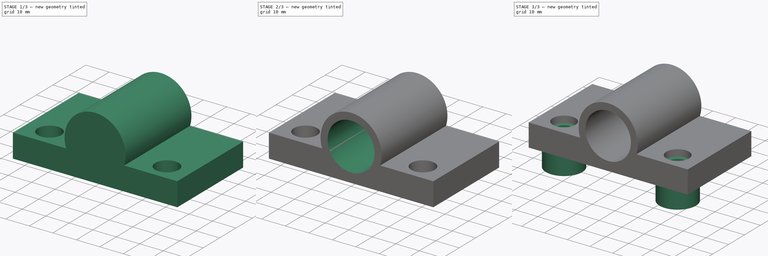
[diagram: build sequence overview — one tinted view per stage of 3, left to right]
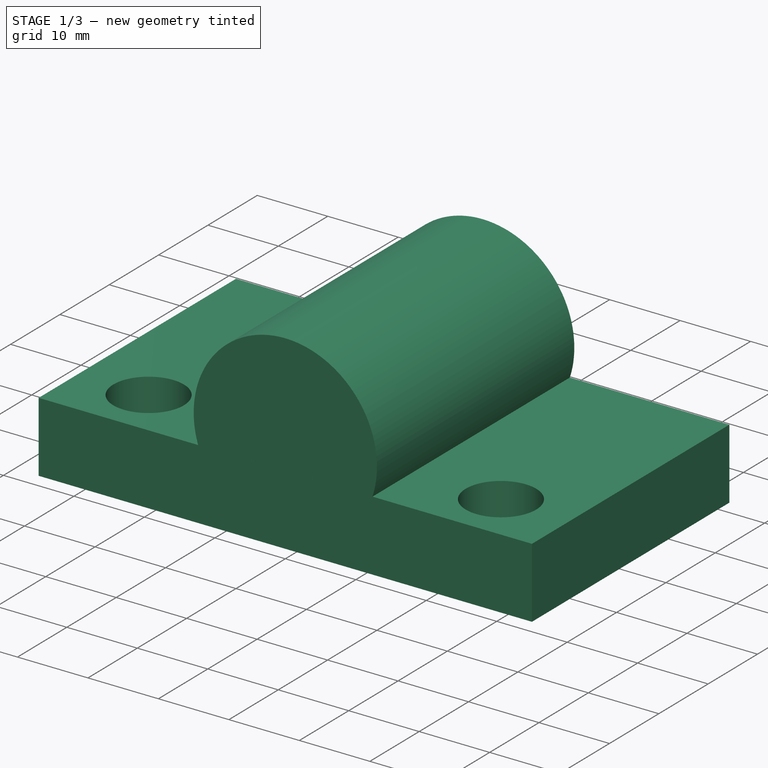
[diagram: stage 1 of 3 — iso view after this stage's code; geometry added in this stage tinted green]
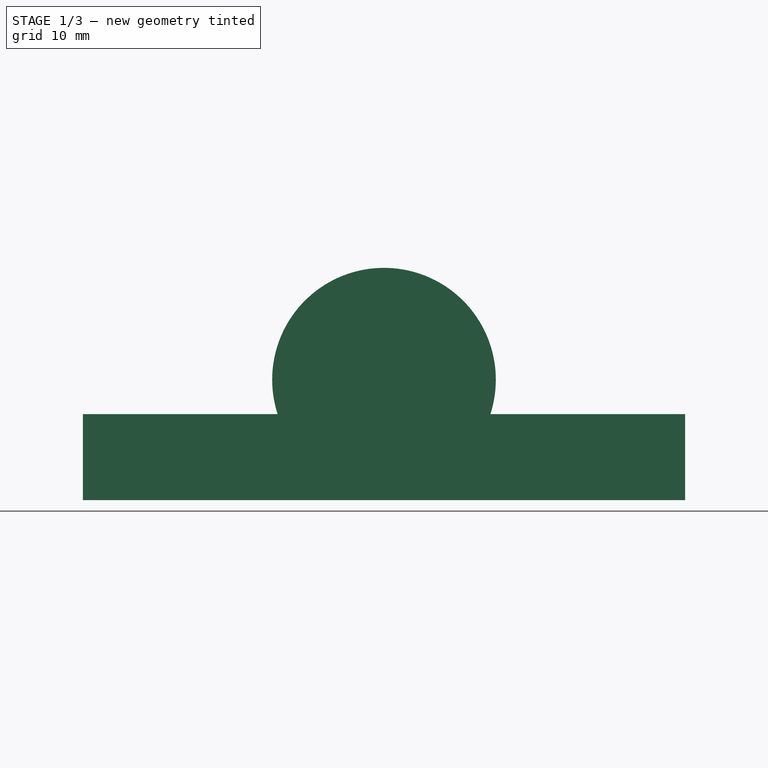
[diagram: stage 1 of 3 — front view after this stage's code; geometry added in this stage tinted green]
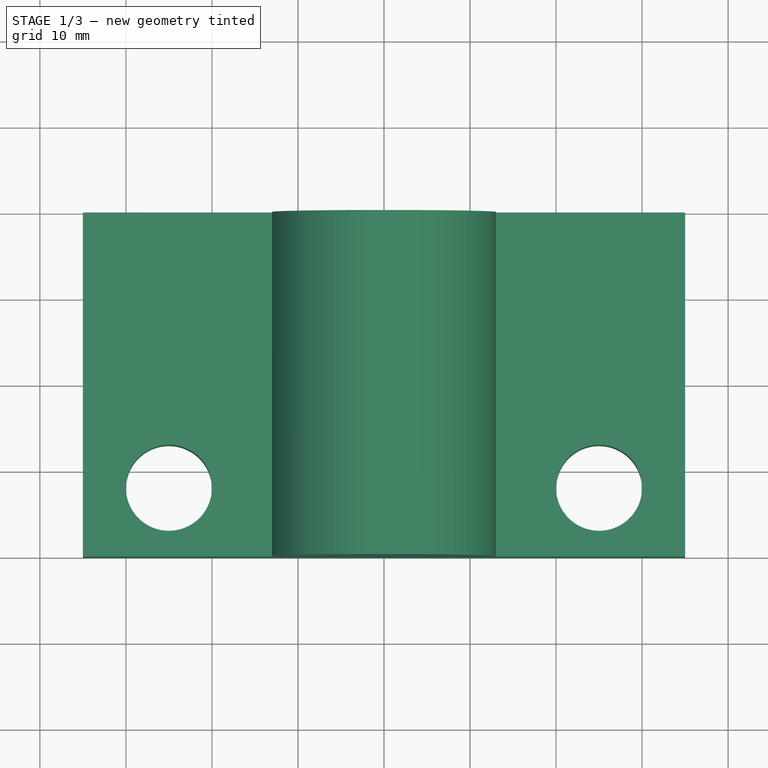
[diagram: stage 1 of 3 — top view after this stage's code; geometry added in this stage tinted green]
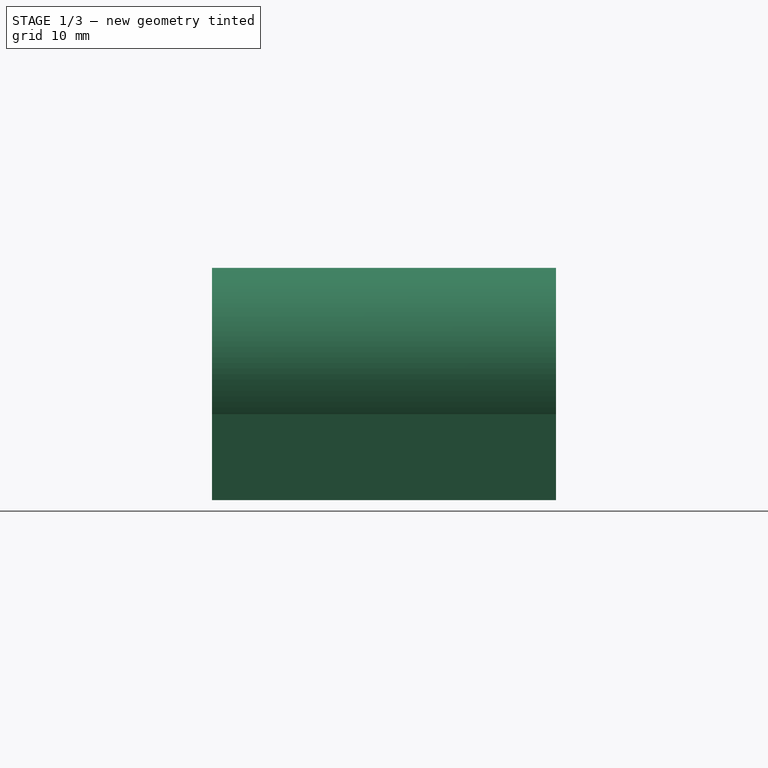
[diagram: stage 1 of 3 — right view after this stage's code; geometry added in this stage tinted green]
FCSTD DOCUMENT  (FreeCAD 0.16R6698 (Git))
Label: table-bracket-top
License: All rights reserved
LicenseURL: http://en.wikipedia.org/wiki/All_rights_reserved
objects: Sketcher::SketchObject×4, Part::Extrusion×4, Part::Cut×1, Part::MultiFuse×1
note: 10 computed .brp shape members not serialized (recipe doc carries the construction recipe); baked Part::Feature solids carry a one-line shape summary decoded from their .brp

FEATURE [Sketcher::SketchObject] Sketch
  sketch-geometry (7):
    g0: LineSegment StartX=-35 StartY=20 StartZ=0 EndX=35 EndY=20 EndZ=0
    g1: LineSegment StartX=35 StartY=20 StartZ=0 EndX=35 EndY=-20 EndZ=0
    g2: LineSegment StartX=35 StartY=-20 StartZ=0 EndX=-35 EndY=-20 EndZ=0
    g3: LineSegment StartX=-35 StartY=-20 StartZ=0 EndX=-35 EndY=20 EndZ=0
    g4: Circle CenterX=-25 CenterY=-12 CenterZ=0 NormalX=0 NormalY=0 NormalZ=1 Radius=5
    g5: Circle CenterX=25 CenterY=-12 CenterZ=0 NormalX=0 NormalY=0 NormalZ=1 Radius=5
    g6: LineSegment [constr] StartX=-25 StartY=-12 StartZ=0 EndX=25 EndY=-12 EndZ=0
  constraints (20):
    c: Coincident(g0,g1)
    c: Coincident(g1,g2)
    c: Coincident(g2,g3)
    c: Coincident(g3,g0)
    c: Horizontal(g0)
    c: Horizontal(g2)
    c: Vertical(g1)
    c: Vertical(g3)
    c: DistanceX(g0,g0) = 70
    c: DistanceY(g1,g1) = 40
    c: Symmetric(g0,g0,g-2)
    c: Symmetric(g0,g1,g-1)
    c: Coincident(g6,g4)
    c: Coincident(g6,g5)
    c: Horizontal(g6)
    c: Radius(g4) = 5
    c: Equal(g4,g5)
    c: DistanceX(g6,g6) = 50
    c: Symmetric(g4,g5,g-2)
    c: DistanceY(g5,g-1) = 12
FEATURE [Part::Extrusion] Extrude
  Base = -> Sketch
  Dir = (0,0,10)
  Solid = true
FEATURE [Sketcher::SketchObject] Sketch003
  Placement = pos=(0,0,0) rot=(1,0,0;1.5708rad)
  sketch-geometry (1):
    g0: Circle CenterX=0 CenterY=0 CenterZ=0 NormalX=0 NormalY=0 NormalZ=1 Radius=13
  constraints (2):
    c: Radius(g0) = 13
    c: Coincident(g0,g-1)
FEATURE [Part::Extrusion] Extrude003
  Base = -> Sketch003
  Dir = (0,40,0)
  Placement = pos=(0,-20,14) rot=(0,0,1;0rad)
  Solid = true
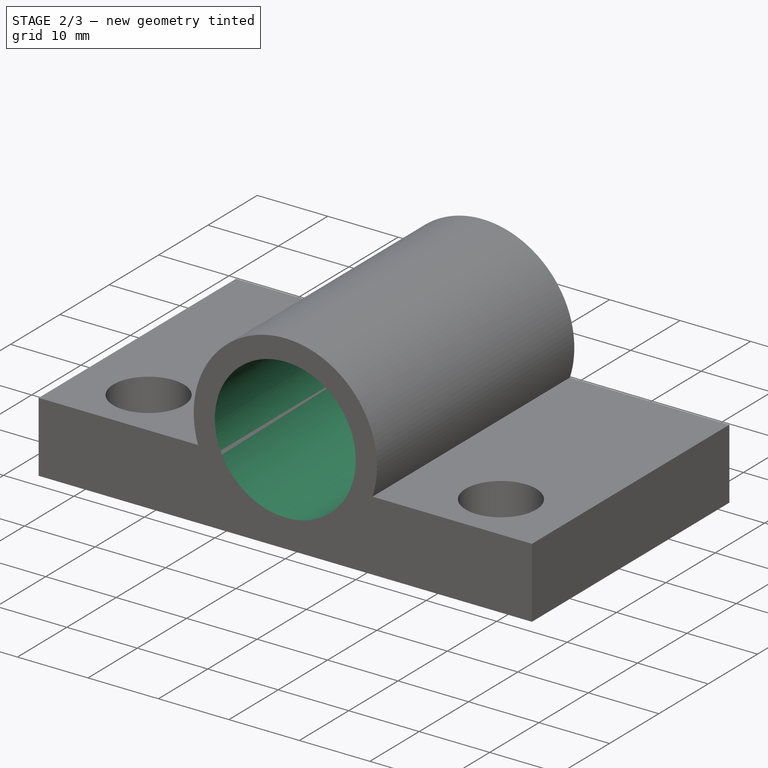
[diagram: stage 2 of 3 — iso view after this stage's code; geometry added in this stage tinted green]
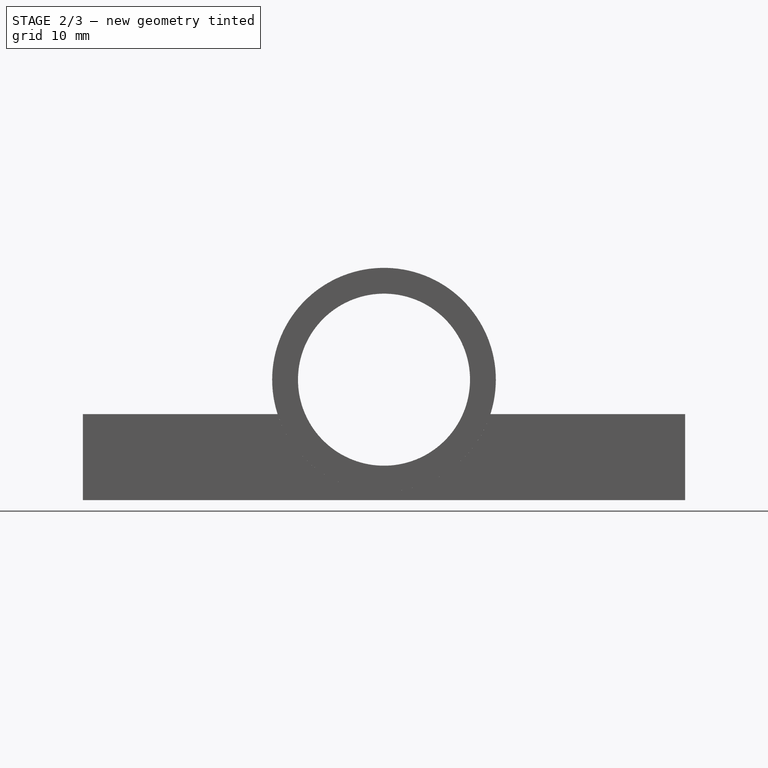
[diagram: stage 2 of 3 — front view after this stage's code; geometry added in this stage tinted green]
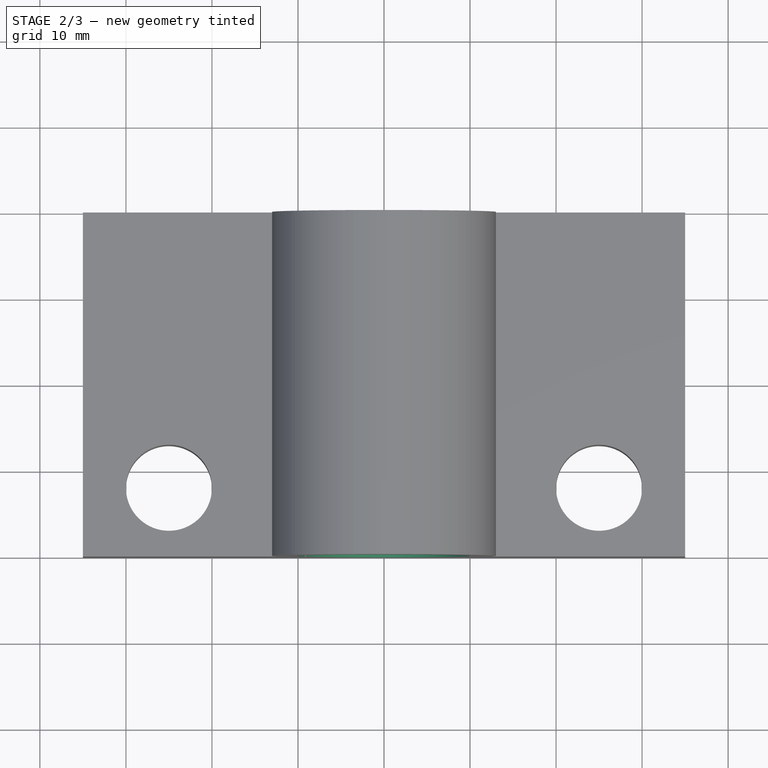
[diagram: stage 2 of 3 — top view after this stage's code; geometry added in this stage tinted green]
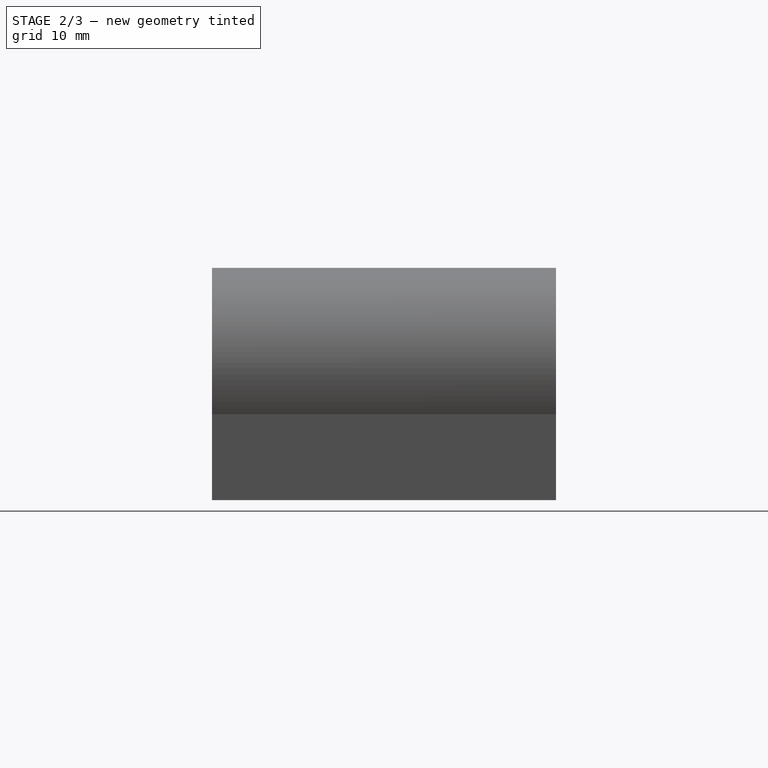
[diagram: stage 2 of 3 — right view after this stage's code; geometry added in this stage tinted green]
FEATURE [Sketcher::SketchObject] Sketch002
  Placement = pos=(0,0,0) rot=(1,0,0;1.5708rad)
  sketch-geometry (2):
    g0: Circle CenterX=0 CenterY=0 CenterZ=0 NormalX=0 NormalY=0 NormalZ=1 Radius=10
    g1: Circle CenterX=0 CenterY=0 CenterZ=0 NormalX=0 NormalY=0 NormalZ=1 Radius=13
  constraints (4):
    c: Coincident(g1,g0)
    c: Radius(g0) = 10
    c: Radius(g1) = 13
    c: Coincident(g0,g-1)
FEATURE [Part::Extrusion] Extrude002
  Base = -> Sketch002
  Dir = (0,40,0)
  Placement = pos=(0,-20,14) rot=(0,0,1;0rad)
  Solid = true
FEATURE [Part::Cut] Cut
  Base = -> Extrude
  Tool = -> Extrude003
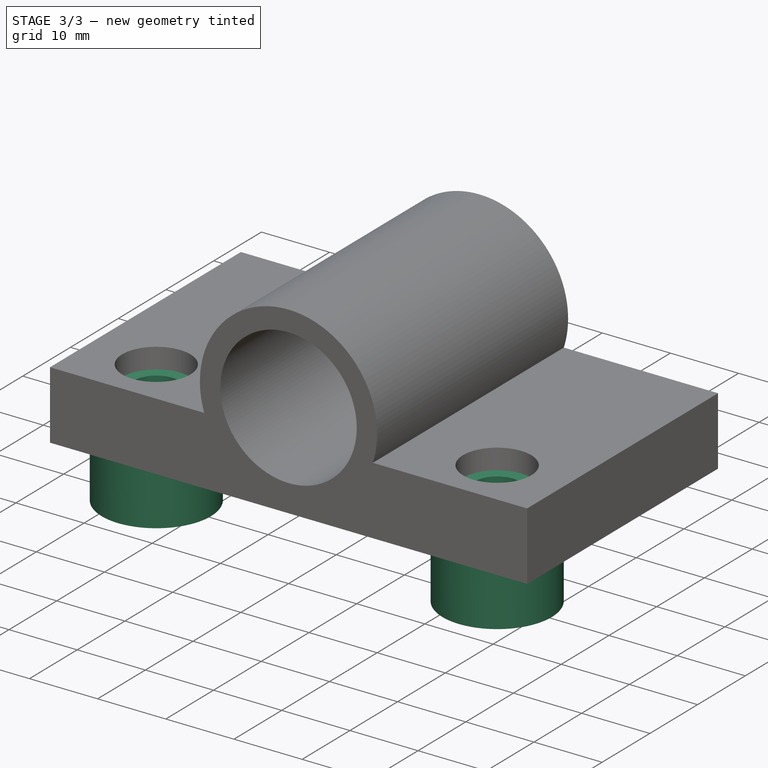
[diagram: stage 3 of 3 — iso view after this stage's code; geometry added in this stage tinted green]
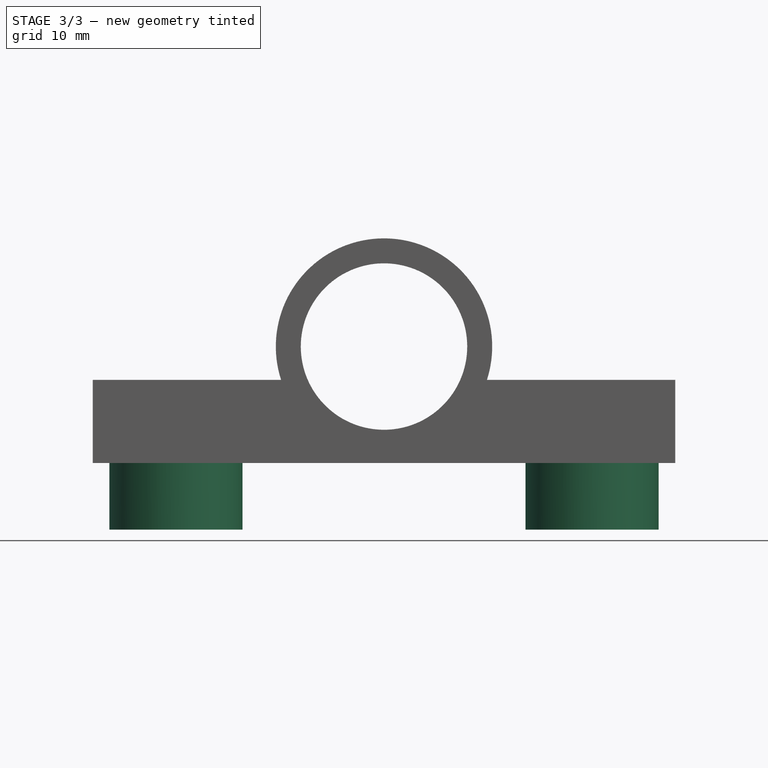
[diagram: stage 3 of 3 — front view after this stage's code; geometry added in this stage tinted green]
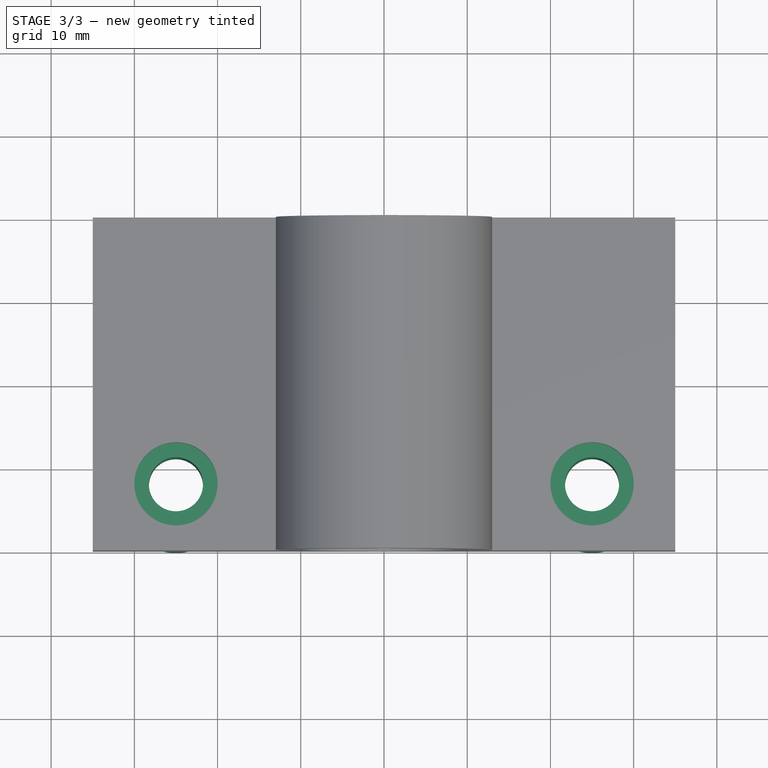
[diagram: stage 3 of 3 — top view after this stage's code; geometry added in this stage tinted green]
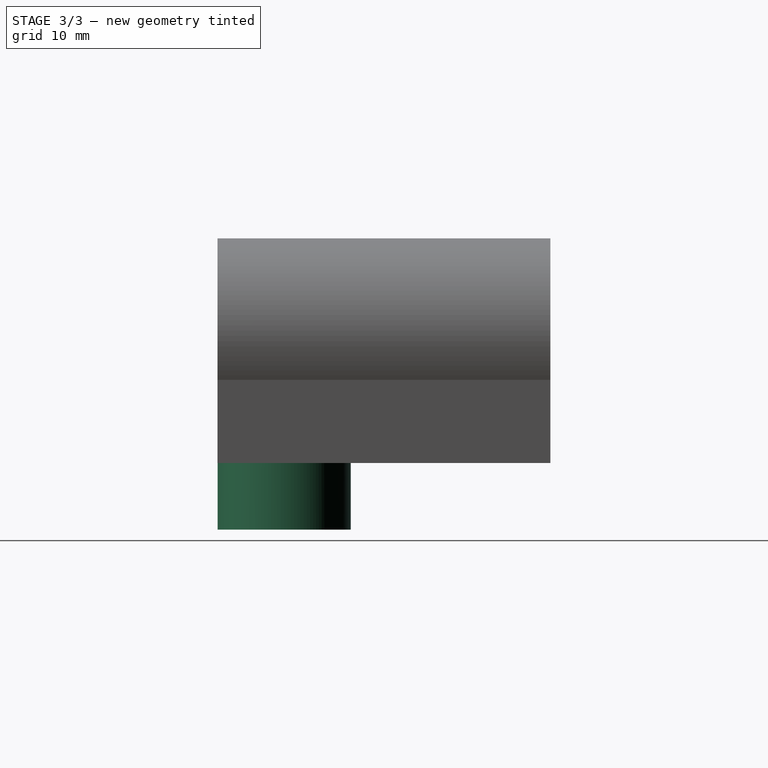
[diagram: stage 3 of 3 — right view after this stage's code; geometry added in this stage tinted green]
FEATURE [Sketcher::SketchObject] Sketch001
  sketch-geometry (5):
    g0: Circle CenterX=-25 CenterY=-12 CenterZ=0 NormalX=0 NormalY=0 NormalZ=1 Radius=8
    g1: Circle CenterX=25 CenterY=-12 CenterZ=0 NormalX=0 NormalY=0 NormalZ=1 Radius=8
    g2: LineSegment [constr] StartX=-25 StartY=-12 StartZ=0 EndX=25 EndY=-12 EndZ=0
    g3: Circle CenterX=-25 CenterY=-12 CenterZ=0 NormalX=0 NormalY=0 NormalZ=1 Radius=3.25
    g4: Circle CenterX=25 CenterY=-12 CenterZ=0 NormalX=0 NormalY=0 NormalZ=1 Radius=3.25
  constraints (12):
    c: Coincident(g2,g0)
    c: Coincident(g2,g1)
    c: Horizontal(g2)
    c: Radius(g0) = 8
    c: Equal(g0,g1)
    c: DistanceX(g2,g2) = 50
    c: Symmetric(g0,g1,g-2)
    c: DistanceY(g1,g-1) = 12
    c: Coincident(g3,g0)
    c: Coincident(g4,g1)
    c: Radius(g3) = 3.25
    c: Equal(g3,g4)
FEATURE [Part::Extrusion] Extrude001
  Base = -> Sketch001
  Dir = (0,0,15)
  Placement = pos=(0,0,-8) rot=(0,0,1;0rad)
  Solid = true
FEATURE [Part::MultiFuse] Fusion
  Shapes = -> [Extrude001,Extrude002,Cut]
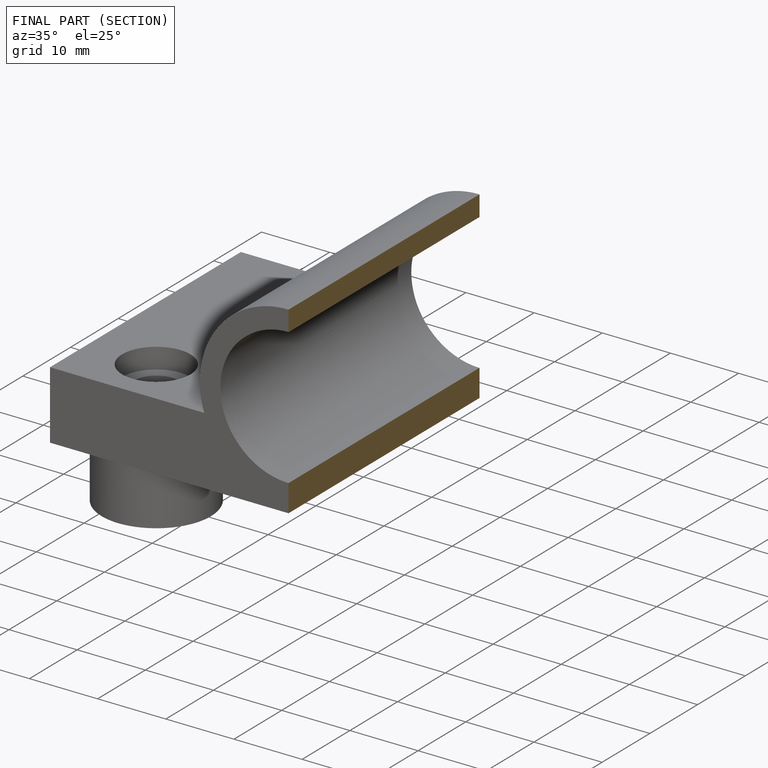
[diagram: finished part — half-section view (interior)]
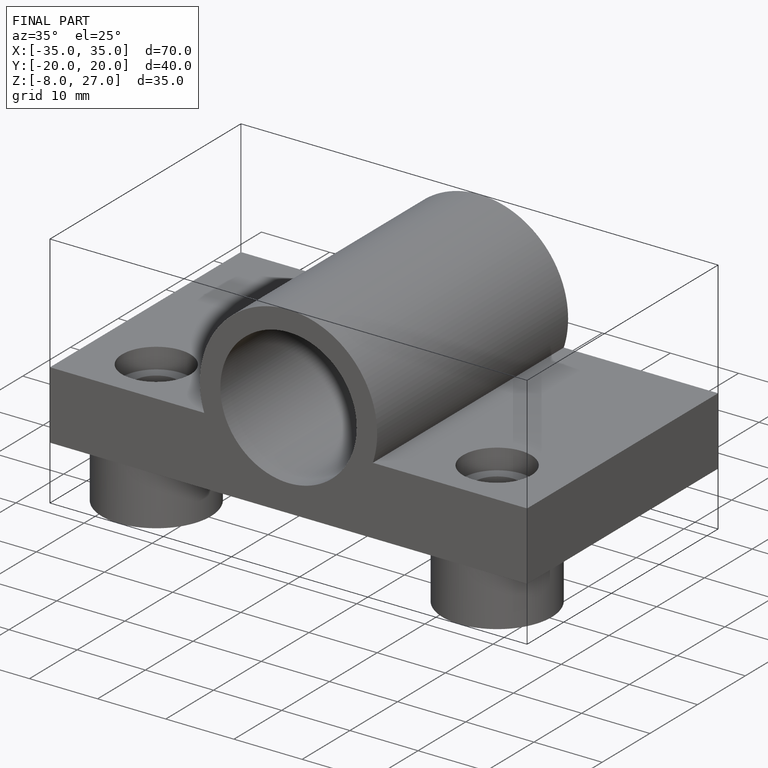
[diagram: finished part — iso view with bounding-box wireframe]
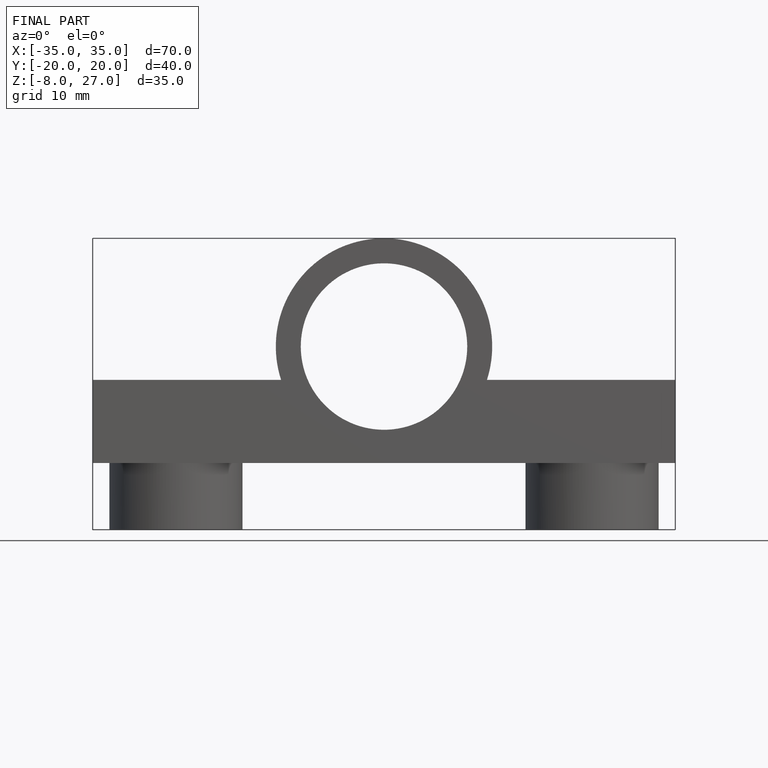
[diagram: finished part — front view with bounding-box wireframe]
